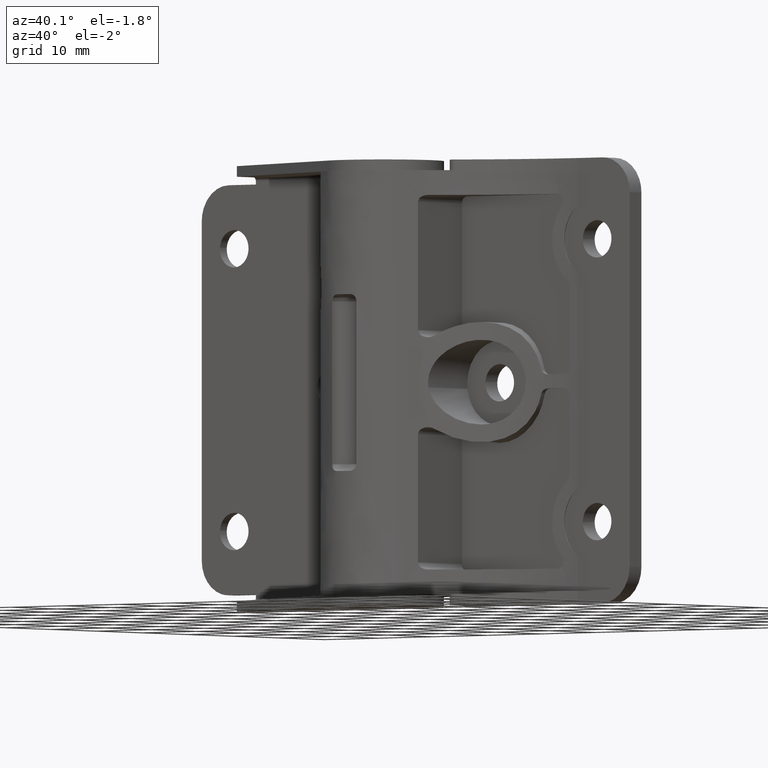
[diagram: clean part render]
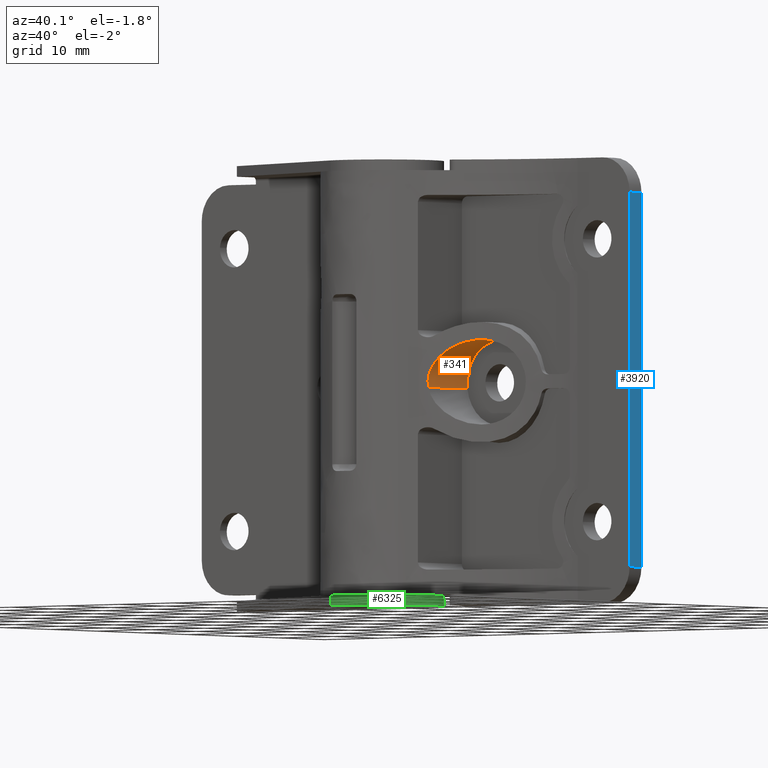
[diagram: same view with three faces highlighted in distinct colors, each labeled with its STEP entity id]
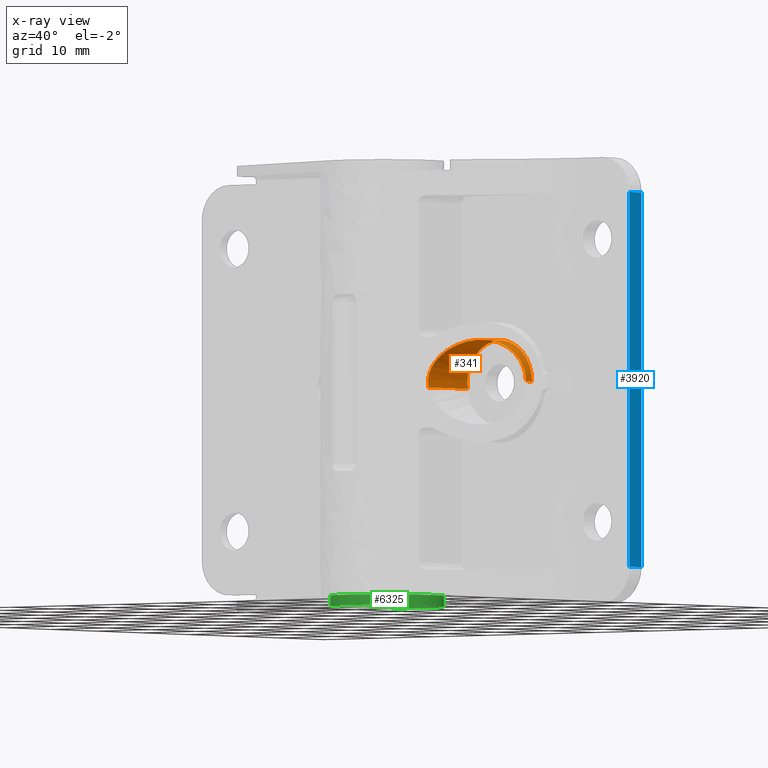
[diagram: x-ray of the same camera — body ghosted, the three highlighted faces saturated]
A machine part, auxiliary view with three faces highlighted in distinct colors.
The next image is the same camera in x-ray (body ghosted, the three faces saturated) — at least one of them is partly hidden behind the body in this view.
Their STEP definitions:

[orange] entity #341 — the highlighted face is a freeform B-spline surface patch.
#62=CARTESIAN_POINT('',(10.046401907588461,6.400002000006103,30.755238458302848));
#63=VERTEX_POINT('',#62);
#79=CARTESIAN_POINT('',(10.046399915409131,-2.176541242901305,30.755231636957920));
#80=VERTEX_POINT('',#79);
#81=CARTESIAN_POINT('',(10.046401907588461,6.400002000006103,30.755238458302848));
#82=CARTESIAN_POINT('',(10.046399915409131,-2.176541242901305,30.755231636957920));
#83=QUASI_UNIFORM_CURVE('',1,(#81,#82),.UNSPECIFIED.,.F.,.U.);
#84=EDGE_CURVE('',#63,#80,#83,.T.);
#127=CARTESIAN_POINT('',(21.999774715368730,5.007763020363887,31.552360724561250));
#128=VERTEX_POINT('',#127);
#175=CARTESIAN_POINT('',(21.999771538383801,6.400001999999999,31.552359213130789));
#176=VERTEX_POINT('',#175);
#177=CARTESIAN_POINT('',(21.999771538383801,6.400001999999999,31.552359213130789));
#178=CARTESIAN_POINT('',(21.999774715368730,5.007763020363887,31.552360724561250));
#179=QUASI_UNIFORM_CURVE('',1,(#177,#178),.UNSPECIFIED.,.F.,.U.);
#180=EDGE_CURVE('',#176,#128,#179,.T.);
#200=CARTESIAN_POINT('',(21.999771538385030,6.615296372477418,31.552359212990229));
#201=CARTESIAN_POINT('',(21.947412325394801,6.615296372477418,37.552130751375245));
#202=CARTESIAN_POINT('',(15.947640787009769,6.615296372477418,37.499771538385033));
#203=CARTESIAN_POINT('',(9.947869248624750,6.615296372477418,37.447412325394808));
#204=CARTESIAN_POINT('',(10.000228461614970,6.615296372477418,31.447640787009771));
#205=CARTESIAN_POINT('',(10.003261412438343,6.615296372477418,31.100099046250978));
#206=CARTESIAN_POINT('',(10.046402717046764,6.615296372477417,30.755231987521039));
#207=CARTESIAN_POINT('',(21.999771538385030,-2.432449630885983,31.552359212990229));
#208=CARTESIAN_POINT('',(21.947412325394801,-2.432449630885983,37.552130751375245));
#209=CARTESIAN_POINT('',(15.947640787009769,-2.432449630885983,37.499771538385033));
#210=CARTESIAN_POINT('',(9.947869248624750,-2.432449630885983,37.447412325394808));
#211=CARTESIAN_POINT('',(10.000228461614970,-2.432449630885983,31.447640787009771));
#212=CARTESIAN_POINT('',(10.003261412438343,-2.432449630885983,31.100099046250978));
#213=CARTESIAN_POINT('',(10.046402717046764,-2.432449630885982,30.755231987521039));
#221=(BOUNDED_SURFACE()B_SPLINE_SURFACE(2,1,((#200,#207),(#201,#208),(#202,#209),(#203,#210),(#204,#211),(#205,#212),(#206,#213)),.UNSPECIFIED.,.F.,.F.,.U.)B_SPLINE_SURFACE_WITH_KNOTS((3,2,2,3),(2,2),(0.0,9.941125496954273,19.882250993908549,20.677541033664891),(0.0,9.047746003363402),.UNSPECIFIED.)GEOMETRIC_REPRESENTATION_ITEM()RATIONAL_B_SPLINE_SURFACE(((1.0,1.0),(0.707106781186548,0.707106781186548),(1.0,1.0),(0.707106781186548,0.707106781186548),(1.0,1.0),(0.976568542494924,0.976568542494924),(0.956886118190660,0.956886118190660)))REPRESENTATION_ITEM('')SURFACE());
#222=CARTESIAN_POINT('',(16.0,6.400002000000000,37.500000000000000));
#223=VERTEX_POINT('',#222);
#224=CARTESIAN_POINT('',(16.0,6.400002000000000,37.500000000000000));
#225=CARTESIAN_POINT('',(10.000000000000002,6.400002000000001,37.499999999999993));
#226=CARTESIAN_POINT('',(10.0,6.400002000000000,31.500000000000000));
#227=CARTESIAN_POINT('',(9.999999999999998,6.400002000000001,31.126173708063597));
#228=CARTESIAN_POINT('',(10.046401907588459,6.400002000006103,30.755238458302852));
#236=(BOUNDED_CURVE()B_SPLINE_CURVE(2,(#224,#225,#226,#227,#228),.UNSPECIFIED.,.F.,.U.)B_SPLINE_CURVE_WITH_KNOTS((3,2,3),(0.0,0.250000000000000,0.271473745674619),.UNSPECIFIED.)CURVE()GEOMETRIC_REPRESENTATION_ITEM()RATIONAL_B_SPLINE_CURVE((1.0,0.707106781186548,1.0,0.974841942037517,0.954005785981864))REPRESENTATION_ITEM(''));
#237=EDGE_CURVE('',#223,#63,#236,.T.);
#238=ORIENTED_EDGE('',*,*,#237,.F.);
#239=CARTESIAN_POINT('',(21.999771538383797,6.400001999999999,31.552359213130785));
#240=CARTESIAN_POINT('',(21.947867263291190,6.400002000000000,37.499999999999986));
#241=CARTESIAN_POINT('',(16.0,6.400002000000000,37.500000000000000));
#249=(BOUNDED_CURVE()B_SPLINE_CURVE(2,(#239,#240,#241),.UNSPECIFIED.,.F.,.U.)B_SPLINE_CURVE_WITH_KNOTS((3,3),(0.751539894343240,1.0),.UNSPECIFIED.)CURVE()GEOMETRIC_REPRESENTATION_ITEM()RATIONAL_B_SPLINE_CURVE((0.996414028081307,0.708910879629844,1.0))REPRESENTATION_ITEM(''));
#250=EDGE_CURVE('',#176,#223,#249,.T.);
#251=ORIENTED_EDGE('',*,*,#250,.F.);
#252=ORIENTED_EDGE('',*,*,#180,.T.);
#253=CARTESIAN_POINT('',(15.389306146218869,1.992157707301278,37.468840173513939));
#254=VERTEX_POINT('',#253);
#255=CARTESIAN_POINT('',(15.389306146218869,1.992157707301278,37.468840173513939));
#256=CARTESIAN_POINT('',(15.751132909243600,2.213687872872112,37.505860001286550));
#257=CARTESIAN_POINT('',(16.117110050367231,2.427210892108075,37.510336947711927));
#258=CARTESIAN_POINT('',(16.672223617793499,2.735541683337900,37.465113669467868));
#259=CARTESIAN_POINT('',(16.858285935759710,2.836325398790654,37.441333049191933));
#260=CARTESIAN_POINT('',(17.138903543647491,2.984510019905937,37.391682347981892));
#261=CARTESIAN_POINT('',(17.232718101811379,3.033417334941423,37.372793168765483));
#262=CARTESIAN_POINT('',(17.420766404192420,3.130189579740529,37.330155738514762));
#263=CARTESIAN_POINT('',(17.514209646459971,3.177648060930513,37.306587189232573));
#264=CARTESIAN_POINT('',(17.978469085653082,3.410440852740389,37.177522454958698));
#265=CARTESIAN_POINT('',(18.340513209538500,3.582329847545071,37.038633966920493));
#266=CARTESIAN_POINT('',(18.867400827990942,3.820620887876411,36.774146735186882));
#267=CARTESIAN_POINT('',(19.040315064554399,3.896783738565965,36.676573263480563));
#268=CARTESIAN_POINT('',(19.295136373996819,4.006280988518238,36.515194479985389));
#269=CARTESIAN_POINT('',(19.379316765027600,4.041988260171960,36.458894005816937));
#270=CARTESIAN_POINT('',(19.546053689532240,4.111836596513656,36.341065358013012));
#271=CARTESIAN_POINT('',(19.628231672693950,4.145817030240302,36.279786614981468));
#272=CARTESIAN_POINT('',(20.029768056546899,4.309855303350079,35.964071726314693));
#273=CARTESIAN_POINT('',(20.324596985356148,4.423843086987628,35.679649285153779));
#274=CARTESIAN_POINT('',(20.724645008651780,4.572710892886765,35.204134958610297));
#275=CARTESIAN_POINT('',(20.850917246784071,4.618621201331347,35.037430577579677));
#276=CARTESIAN_POINT('',(21.028887849064020,4.682142600286296,34.774366030235853));
#277=CARTESIAN_POINT('',(21.086032973620931,4.702327563468359,34.684872549525622));
#278=CARTESIAN_POINT('',(21.195033573891159,4.740490921530553,34.503792523398218));
#279=CARTESIAN_POINT('',(21.247039882643332,4.758523203966065,34.411985649522713));
#280=CARTESIAN_POINT('',(21.395622717279320,4.809628575976793,34.132808497257393));
#281=CARTESIAN_POINT('',(21.484782697195410,4.839721107869576,33.941692023371203));
#282=CARTESIAN_POINT('',(21.643089742592711,4.892510598918189,33.549447998964659));
#283=CARTESIAN_POINT('',(21.712239985889699,4.915207815415037,33.348321899644503));
#284=CARTESIAN_POINT('',(21.800293143628270,4.943861096560092,33.038853262660631));
#285=CARTESIAN_POINT('',(21.827071972268460,4.952525087072554,32.934133047118749));
#286=CARTESIAN_POINT('',(21.874671881634050,4.967867219956277,32.724636562319347));
#287=CARTESIAN_POINT('',(21.895579803531870,4.974573815588430,32.619606940773451));
#288=CARTESIAN_POINT('',(21.949765559410199,4.991907285856592,32.303689093671807));
#289=CARTESIAN_POINT('',(21.974529141948739,4.999760916418602,32.091974342277027));
#290=CARTESIAN_POINT('',(21.994884030476229,5.006213859258510,31.770517470298490));
#291=CARTESIAN_POINT('',(21.998821701988099,5.007461388337048,31.661583596245080));
#292=CARTESIAN_POINT('',(21.999774715368730,5.007763020363887,31.552360724561250));
#293=B_SPLINE_CURVE_WITH_KNOTS('',3,(#255,#256,#257,#258,#259,#260,#261,#262,#263,#264,#265,#266,#267,#268,#269,#270,#271,#272,#273,#274,#275,#276,#277,#278,#279,#280,#281,#282,#283,#284,#285,#286,#287,#288,#289,#290,#291,#292),.UNSPECIFIED.,.F.,.U.,(4,2,2,2,2,2,2,2,2,2,2,2,2,2,2,2,2,2,4),(0.499999999999978,0.531249999999977,0.546874999999977,0.554687499999977,0.562499999999978,0.593749999999978,0.609374999999978,0.617187499999978,0.624999999999978,0.656249999999979,0.671874999999980,0.679687499999980,0.687499999999980,0.703124999999981,0.718749999999982,0.726562499999982,0.734374999999983,0.749999999999984,0.757977336081141),.UNSPECIFIED.);
#294=EDGE_CURVE('',#254,#128,#293,.T.);
#295=ORIENTED_EDGE('',*,*,#294,.F.);
#296=CARTESIAN_POINT('',(10.046399915409131,-2.176541242901305,30.755231636957920));
#297=CARTESIAN_POINT('',(10.030525046848309,-2.192111894806682,30.882118241937452));
#298=CARTESIAN_POINT('',(9.999132136621125,-2.223002190444761,31.220881083669742));
#299=CARTESIAN_POINT('',(9.996510678886621,-2.225590453179283,31.561557957108210));
#300=CARTESIAN_POINT('',(10.011214951392260,-2.211112774297812,31.881902204220228));
#301=CARTESIAN_POINT('',(10.018982461535741,-2.203467105280074,31.988874302361101));
#302=CARTESIAN_POINT('',(10.040380112120280,-2.182445235343821,32.203207302667003));
#303=CARTESIAN_POINT('',(10.053910794764059,-2.169167136919078,32.309488538492211));
#304=CARTESIAN_POINT('',(10.102465625618180,-2.121644749394357,32.624353449906472));
#305=CARTESIAN_POINT('',(10.145489296542630,-2.079668117924443,32.829617606148823));
#306=CARTESIAN_POINT('',(10.225026271563699,-2.002747067665986,33.131089995617643));
#307=CARTESIAN_POINT('',(10.254045938012220,-1.974775848848209,33.230507494224128));
#308=CARTESIAN_POINT('',(10.317014613244179,-1.914367060304477,33.427257739463101));
#309=CARTESIAN_POINT('',(10.351087270613940,-1.881812556603753,33.524892305195763));
#310=CARTESIAN_POINT('',(10.459347719783390,-1.778922841208401,33.811462454913617));
#311=CARTESIAN_POINT('',(10.539666398626220,-1.703272050691221,33.994704520056473));
#312=CARTESIAN_POINT('',(10.715081334172220,-1.540190238373940,34.347530589796037));
#313=CARTESIAN_POINT('',(10.810186227506680,-1.452750310734638,34.517105621701837));
#314=CARTESIAN_POINT('',(10.963357981302790,-1.313985631723860,34.762131052618500));
#315=CARTESIAN_POINT('',(11.016172559641200,-1.266458839624003,34.842245209172162));
#316=CARTESIAN_POINT('',(11.125272852602560,-1.169022244442115,34.999453560674439));
#317=CARTESIAN_POINT('',(11.181706645207150,-1.118982686400091,35.076735417921533));
#318=CARTESIAN_POINT('',(11.354945897688451,-0.966589061590127,35.302560166017336));
#319=CARTESIAN_POINT('',(11.475529850159241,-0.862092482973062,35.445016979135488));
#320=CARTESIAN_POINT('',(11.851709830974650,-0.541665572315851,35.850595614169137));
#321=CARTESIAN_POINT('',(12.121605928779539,-0.318901308399715,36.092156166957317));
#322=CARTESIAN_POINT('',(12.482528641446370,-0.032603940352381,36.361636042016187));
#323=CARTESIAN_POINT('',(12.555901562415430,0.025056491216819,36.413888955908021));
#324=CARTESIAN_POINT('',(12.705057352116450,0.141121343452163,36.515124354496571));
#325=CARTESIAN_POINT('',(12.780978236367030,0.199630742206601,36.564190246061123));
#326=CARTESIAN_POINT('',(13.011393411643780,0.375414801110965,36.705837154311901));
#327=CARTESIAN_POINT('',(13.168050443827291,0.492580805227363,36.792624681428677));
#328=CARTESIAN_POINT('',(13.647169263277210,0.843491755125249,37.030954268520183));
#329=CARTESIAN_POINT('',(13.978720762325480,1.076619218950498,37.160663545013300));
#330=CARTESIAN_POINT('',(14.495364873681320,1.423747842002408,37.311044948776342));
#331=CARTESIAN_POINT('',(14.670850267080519,1.539062463586248,37.353764811564233));
#332=CARTESIAN_POINT('',(15.028516750084020,1.768624681458136,37.423632497948553));
#333=CARTESIAN_POINT('',(15.208392760901029,1.881392541306391,37.450330264927992));
#334=CARTESIAN_POINT('',(15.389306146218869,1.992157707301278,37.468840173513939));
#335=B_SPLINE_CURVE_WITH_KNOTS('',3,(#296,#297,#298,#299,#300,#301,#302,#303,#304,#305,#306,#307,#308,#309,#310,#311,#312,#313,#314,#315,#316,#317,#318,#319,#320,#321,#322,#323,#324,#325,#326,#327,#328,#329,#330,#331,#332,#333,#334),.UNSPECIFIED.,.F.,.U.,(4,1,2,2,2,2,2,2,2,2,2,2,2,2,2,2,2,2,2,4),(0.240610693302615,0.249999999999986,0.265624999999985,0.273437499999985,0.281249999999984,0.296874999999984,0.304687499999984,0.312499999999984,0.328124999999983,0.343749999999982,0.351562499999982,0.359374999999981,0.374999999999980,0.406249999999979,0.414062499999979,0.421874999999978,0.437499999999978,0.468749999999978,0.484374999999978,0.499999999999978),.UNSPECIFIED.);
#336=EDGE_CURVE('',#80,#254,#335,.T.);
#337=ORIENTED_EDGE('',*,*,#336,.F.);
#338=ORIENTED_EDGE('',*,*,#84,.F.);
#339=EDGE_LOOP('',(#238,#251,#252,#295,#337,#338));
#340=FACE_OUTER_BOUND('',#339,.T.);
#341=ADVANCED_FACE('',(#340),#221,.F.);

[blue] entity #3920 — the highlighted face is a freeform B-spline surface patch.
#2577=CARTESIAN_POINT('',(40.0,9.0,58.0));
#2578=VERTEX_POINT('',#2577);
#2599=CARTESIAN_POINT('',(40.0,6.400002000000000,58.0));
#2600=VERTEX_POINT('',#2599);
#2614=CARTESIAN_POINT('',(40.0,9.0,58.0));
#2615=CARTESIAN_POINT('',(40.0,6.400002000000000,58.0));
#2616=QUASI_UNIFORM_CURVE('',1,(#2614,#2615),.UNSPECIFIED.,.F.,.U.);
#2617=EDGE_CURVE('',#2578,#2600,#2616,.T.);
#2636=CARTESIAN_POINT('',(40.0,9.0,5.0));
#2637=VERTEX_POINT('',#2636);
#2653=CARTESIAN_POINT('',(40.0,6.400002000000000,5.0));
#2654=VERTEX_POINT('',#2653);
#2655=CARTESIAN_POINT('',(40.0,6.400002000000000,5.0));
#2656=CARTESIAN_POINT('',(40.0,9.0,5.0));
#2657=QUASI_UNIFORM_CURVE('',1,(#2655,#2656),.UNSPECIFIED.,.F.,.U.);
#2658=EDGE_CURVE('',#2654,#2637,#2657,.T.);
#3901=CARTESIAN_POINT('',(40.0,6.270132104939299,60.647349897275717));
#3902=CARTESIAN_POINT('',(40.0,6.270132104939299,2.352648681153509));
#3903=CARTESIAN_POINT('',(40.0,9.129869964798079,60.647349897275717));
#3904=CARTESIAN_POINT('',(40.0,9.129869964798079,2.352648681153509));
#3905=B_SPLINE_SURFACE_WITH_KNOTS('',1,1,((#3901,#3903),(#3902,#3904)),.UNSPECIFIED.,.F.,.F.,.U.,(2,2),(2,2),(0.0,58.294701216122213),(0.0,2.859737859858780),.UNSPECIFIED.);
#3906=CARTESIAN_POINT('',(40.0,6.400002000000000,58.0));
#3907=CARTESIAN_POINT('',(40.0,6.400002000000000,5.0));
#3908=QUASI_UNIFORM_CURVE('',1,(#3906,#3907),.UNSPECIFIED.,.F.,.U.);
#3909=EDGE_CURVE('',#2600,#2654,#3908,.T.);
#3910=ORIENTED_EDGE('',*,*,#3909,.T.);
#3911=ORIENTED_EDGE('',*,*,#2658,.T.);
#3912=CARTESIAN_POINT('',(40.0,9.0,58.0));
#3913=CARTESIAN_POINT('',(40.0,9.0,5.0));
#3914=QUASI_UNIFORM_CURVE('',1,(#3912,#3913),.UNSPECIFIED.,.F.,.U.);
#3915=EDGE_CURVE('',#2578,#2637,#3914,.T.);
#3916=ORIENTED_EDGE('',*,*,#3915,.F.);
#3917=ORIENTED_EDGE('',*,*,#2617,.T.);
#3918=EDGE_LOOP('',(#3910,#3911,#3916,#3917));
#3919=FACE_OUTER_BOUND('',#3918,.T.);
#3920=ADVANCED_FACE('',(#3919),#3905,.T.);

[green] entity #6325 — the highlighted face is a freeform B-spline surface patch.
#5738=CARTESIAN_POINT('',(-3.276808767599735,-7.842992050268921,1.499999999999834));
#5739=VERTEX_POINT('',#5738);
#5745=CARTESIAN_POINT('',(-4.584174785330380,7.157895387819600,1.499999999999834));
#5746=VERTEX_POINT('',#5745);
#5747=CARTESIAN_POINT('',(-3.276808767599735,-7.842992050268921,1.499999999999834));
#5748=CARTESIAN_POINT('',(3.124043151672412,-10.517274409777521,1.499999999999834));
#5749=CARTESIAN_POINT('',(7.027029076216088,-4.782347324730336,1.499999999999834));
#5750=CARTESIAN_POINT('',(10.930015000759759,0.952579760316844,1.499999999999834));
#5751=CARTESIAN_POINT('',(6.093780912361162,5.925863281884089,1.499999999999834));
#5752=CARTESIAN_POINT('',(1.257546823962558,10.899146803451337,1.499999999999834));
#5753=CARTESIAN_POINT('',(-4.584174785330380,7.157895387819600,1.499999999999834));
#5761=(BOUNDED_CURVE()B_SPLINE_CURVE(2,(#5747,#5748,#5749,#5750,#5751,#5752,#5753),.UNSPECIFIED.,.F.,.U.)B_SPLINE_CURVE_WITH_KNOTS((3,2,2,3),(0.0,0.333333333333333,0.666666666666667,1.0),.UNSPECIFIED.)CURVE()GEOMETRIC_REPRESENTATION_ITEM()RATIONAL_B_SPLINE_CURVE((1.0,0.774738204003550,1.0,0.774738204003550,1.0,0.774738204003550,1.0))REPRESENTATION_ITEM(''));
#5762=EDGE_CURVE('',#5739,#5746,#5761,.T.);
#6046=CARTESIAN_POINT('',(-4.584170824690100,7.157889203533410,0.0));
#6047=VERTEX_POINT('',#6046);
#6061=CARTESIAN_POINT('',(-3.276809999999900,-7.842995000000000,0.0));
#6062=VERTEX_POINT('',#6061);
#6063=CARTESIAN_POINT('',(-4.584170824690100,7.157889203533410,0.0));
#6064=CARTESIAN_POINT('',(1.257551895074683,10.899139927492818,0.0));
#6065=CARTESIAN_POINT('',(6.093784129977254,5.925857560400513,0.0));
#6066=CARTESIAN_POINT('',(10.930016364879824,0.952575193308209,0.0));
#6067=CARTESIAN_POINT('',(7.027028586840112,-4.782350737264031,0.0));
#6068=CARTESIAN_POINT('',(3.124040808800400,-10.517276667836272,0.0));
#6069=CARTESIAN_POINT('',(-3.276809999999900,-7.842995000000000,0.0));
#6077=(BOUNDED_CURVE()B_SPLINE_CURVE(2,(#6063,#6064,#6065,#6066,#6067,#6068,#6069),.UNSPECIFIED.,.F.,.U.)B_SPLINE_CURVE_WITH_KNOTS((3,2,2,3),(0.0,0.333333333333333,0.666666666666667,1.0),.UNSPECIFIED.)CURVE()GEOMETRIC_REPRESENTATION_ITEM()RATIONAL_B_SPLINE_CURVE((1.0,0.774738204003550,1.0,0.774738204003550,1.0,0.774738204003550,1.0))REPRESENTATION_ITEM(''));
#6078=EDGE_CURVE('',#6047,#6062,#6077,.T.);
#6284=CARTESIAN_POINT('',(-4.584170824690100,7.157889203533410,0.0));
#6285=CARTESIAN_POINT('',(-4.584174785330380,7.157895387819600,1.499999999999834));
#6286=QUASI_UNIFORM_CURVE('',1,(#6284,#6285),.UNSPECIFIED.,.F.,.U.);
#6287=EDGE_CURVE('',#6047,#5746,#6286,.T.);
#6293=CARTESIAN_POINT('',(-4.854084337316498,6.977669041035025,-0.037499999999996));
#6294=CARTESIAN_POINT('',(-4.854084337316498,6.977669041035025,1.538437499999830));
#6295=CARTESIAN_POINT('',(1.070391817855485,11.099089352388686,-0.037499999999996));
#6296=CARTESIAN_POINT('',(1.070391817855485,11.099089352388686,1.538437499999830));
#6297=CARTESIAN_POINT('',(6.098070077100979,5.921447570887178,-0.037499999999996));
#6298=CARTESIAN_POINT('',(6.098070077100979,5.921447570887178,1.538437499999830));
#6299=CARTESIAN_POINT('',(11.125748336346472,0.743805789385668,-0.037499999999996));
#6300=CARTESIAN_POINT('',(11.125748336346472,0.743805789385668,1.538437499999830));
#6301=CARTESIAN_POINT('',(6.832029017429387,-5.057012903385046,-0.037499999999996));
#6302=CARTESIAN_POINT('',(6.832029017429387,-5.057012903385046,1.538437499999830));
#6303=CARTESIAN_POINT('',(2.538309698512302,-10.857831596155760,-0.037499999999996));
#6304=CARTESIAN_POINT('',(2.538309698512302,-10.857831596155760,1.538437499999830));
#6305=CARTESIAN_POINT('',(-3.882061523813642,-7.561719270465264,-0.037499999999996));
#6306=CARTESIAN_POINT('',(-3.882061523813642,-7.561719270465264,1.538437499999830));
#6314=(BOUNDED_SURFACE()B_SPLINE_SURFACE(1,2,((#6293,#6295,#6297,#6299,#6301,#6303,#6305),(#6294,#6296,#6298,#6300,#6302,#6304,#6306)),.UNSPECIFIED.,.F.,.F.,.U.)B_SPLINE_SURFACE_WITH_KNOTS((2,2),(3,2,2,3),(0.0,1.0),(0.0,12.487110957196640,24.974221914393269,37.461332871589910),.UNSPECIFIED.)GEOMETRIC_REPRESENTATION_ITEM()RATIONAL_B_SPLINE_SURFACE(((1.0,0.762291913608418,1.0,0.762291913608418,1.0,0.762291913608418,1.0),(1.0,0.762291913608418,1.0,0.762291913608418,1.0,0.762291913608418,1.0)))REPRESENTATION_ITEM('')SURFACE());
#6315=ORIENTED_EDGE('',*,*,#6287,.T.);
#6316=ORIENTED_EDGE('',*,*,#5762,.F.);
#6317=CARTESIAN_POINT('',(-3.276809999999900,-7.842995000000000,0.0));
#6318=CARTESIAN_POINT('',(-3.276808767599735,-7.842992050268921,1.499999999999834));
#6319=QUASI_UNIFORM_CURVE('',1,(#6317,#6318),.UNSPECIFIED.,.F.,.U.);
#6320=EDGE_CURVE('',#6062,#5739,#6319,.T.);
#6321=ORIENTED_EDGE('',*,*,#6320,.F.);
#6322=ORIENTED_EDGE('',*,*,#6078,.F.);
#6323=EDGE_LOOP('',(#6315,#6316,#6321,#6322));
#6324=FACE_OUTER_BOUND('',#6323,.T.);
#6325=ADVANCED_FACE('',(#6324),#6314,.T.);